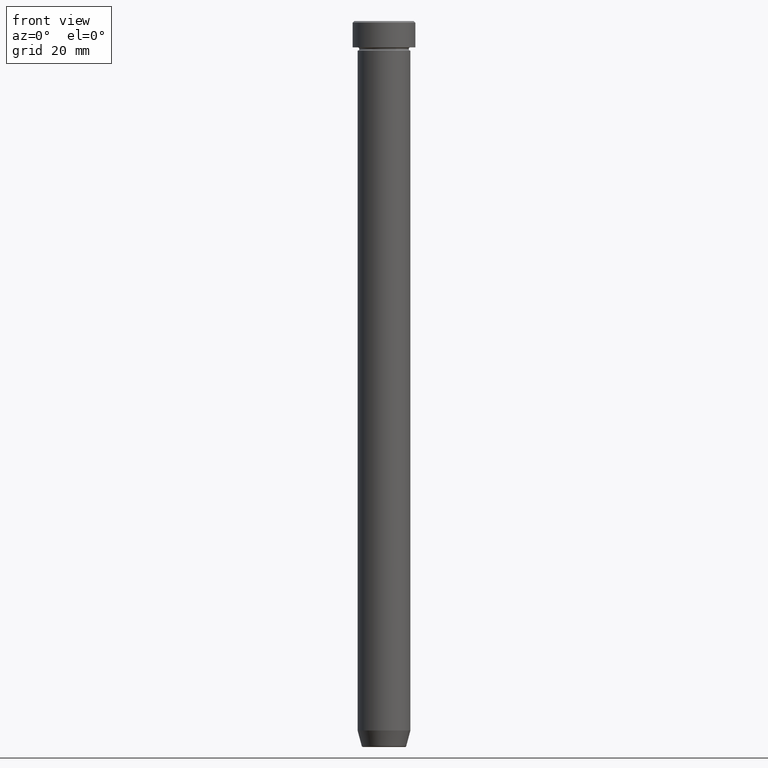
[diagram: clean part render]
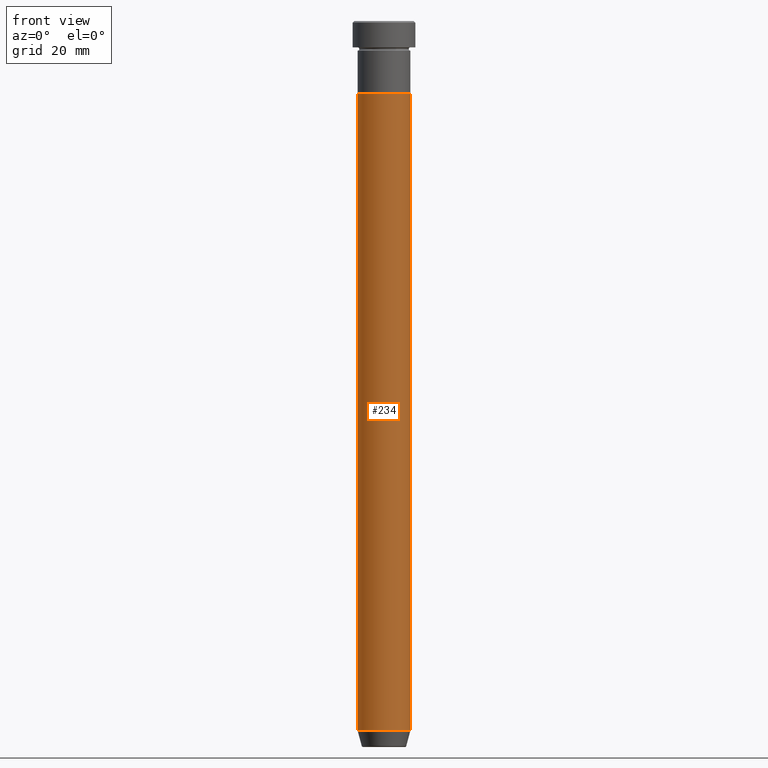
[diagram: same view with one face highlighted and labeled with its STEP entity id]
A machine part, front view. The second image highlights one B-rep face of the part: STEP entity #234.
In plain terms, the highlighted cylindrical surface (edge-blend (fillet) strip) has radius 8 mm, axis along (-0, -0, 1).
Its self-contained STEP definition (entity closure, byte-faithful):
#10 = CARTESIAN_POINT ( 'NONE',  ( 8.000000000000000000, 0.000000000000000000, -22.00000000000000000 ) ) ;
#39 = CYLINDRICAL_SURFACE ( 'NONE', #499, 8.000000000000000000 ) ;
#45 = EDGE_CURVE ( 'NONE', #161, #467, #55, .T. ) ;
#52 = DIRECTION ( 'NONE',  ( -0.000000000000000000, -0.000000000000000000, 1.000000000000000000 ) ) ;
#55 = LINE ( 'NONE', #430, #552 ) ;
#60 = AXIS2_PLACEMENT_3D ( 'NONE', #432, #256, #426 ) ;
#65 = EDGE_CURVE ( 'NONE', #157, #233, #239, .T. ) ;
#85 = ORIENTED_EDGE ( 'NONE', *, *, #45, .T. ) ;
#104 = DIRECTION ( 'NONE',  ( 1.000000000000000000, 0.000000000000000000, 0.000000000000000000 ) ) ;
#125 = ORIENTED_EDGE ( 'NONE', *, *, #238, .F. ) ;
#145 = CIRCLE ( 'NONE', #60, 8.000000000000000000 ) ;
#157 = VERTEX_POINT ( 'NONE', #597 ) ;
#161 = VERTEX_POINT ( 'NONE', #371 ) ;
#164 = CIRCLE ( 'NONE', #172, 8.000000000000000000 ) ;
#172 = AXIS2_PLACEMENT_3D ( 'NONE', #459, #462, #295 ) ;
#233 = VERTEX_POINT ( 'NONE', #276 ) ;
#234 = ADVANCED_FACE ( 'NONE', ( #486 ), #39, .T. ) ;
#238 = EDGE_CURVE ( 'NONE', #233, #467, #164, .T. ) ;
#239 = LINE ( 'NONE', #328, #494 ) ;
#256 = DIRECTION ( 'NONE',  ( -0.000000000000000000, -0.000000000000000000, 1.000000000000000000 ) ) ;
#276 = CARTESIAN_POINT ( 'NONE',  ( -8.000000000000000000, 9.797174393178825657E-16, -22.00000000000000000 ) ) ;
#295 = DIRECTION ( 'NONE',  ( 1.000000000000000000, 0.000000000000000000, 0.000000000000000000 ) ) ;
#298 = EDGE_LOOP ( 'NONE', ( #357, #567, #85, #125 ) ) ;
#328 = CARTESIAN_POINT ( 'NONE',  ( -8.000000000000000000, 9.797174393178825657E-16, 0.000000000000000000 ) ) ;
#357 = ORIENTED_EDGE ( 'NONE', *, *, #65, .F. ) ;
#371 = CARTESIAN_POINT ( 'NONE',  ( 8.000000000000000000, 0.000000000000000000, -214.9999999999999716 ) ) ;
#408 = DIRECTION ( 'NONE',  ( -0.000000000000000000, -0.000000000000000000, 1.000000000000000000 ) ) ;
#426 = DIRECTION ( 'NONE',  ( 1.000000000000000000, 0.000000000000000000, 0.000000000000000000 ) ) ;
#430 = CARTESIAN_POINT ( 'NONE',  ( 8.000000000000000000, 0.000000000000000000, 0.000000000000000000 ) ) ;
#432 = CARTESIAN_POINT ( 'NONE',  ( 0.000000000000000000, 0.000000000000000000, -214.9999999999999716 ) ) ;
#450 = CARTESIAN_POINT ( 'NONE',  ( 0.000000000000000000, 0.000000000000000000, 0.000000000000000000 ) ) ;
#459 = CARTESIAN_POINT ( 'NONE',  ( 0.000000000000000000, 0.000000000000000000, -22.00000000000000000 ) ) ;
#462 = DIRECTION ( 'NONE',  ( -0.000000000000000000, -0.000000000000000000, 1.000000000000000000 ) ) ;
#464 = EDGE_CURVE ( 'NONE', #157, #161, #145, .T. ) ;
#467 = VERTEX_POINT ( 'NONE', #10 ) ;
#486 = FACE_OUTER_BOUND ( 'NONE', #298, .T. ) ;
#494 = VECTOR ( 'NONE', #408, 1000.000000000000000 ) ;
#499 = AXIS2_PLACEMENT_3D ( 'NONE', #450, #507, #104 ) ;
#507 = DIRECTION ( 'NONE',  ( -0.000000000000000000, -0.000000000000000000, 1.000000000000000000 ) ) ;
#552 = VECTOR ( 'NONE', #52, 1000.000000000000000 ) ;
#567 = ORIENTED_EDGE ( 'NONE', *, *, #464, .T. ) ;
#597 = CARTESIAN_POINT ( 'NONE',  ( -8.000000000000000000, 9.797174393178825657E-16, -214.9999999999999716 ) ) ;